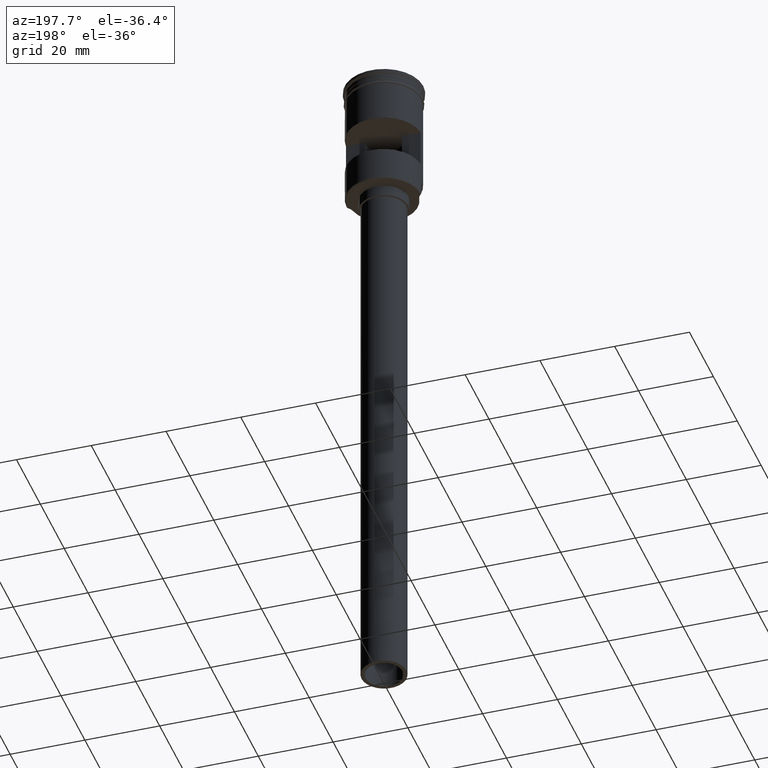
[diagram: clean part render]
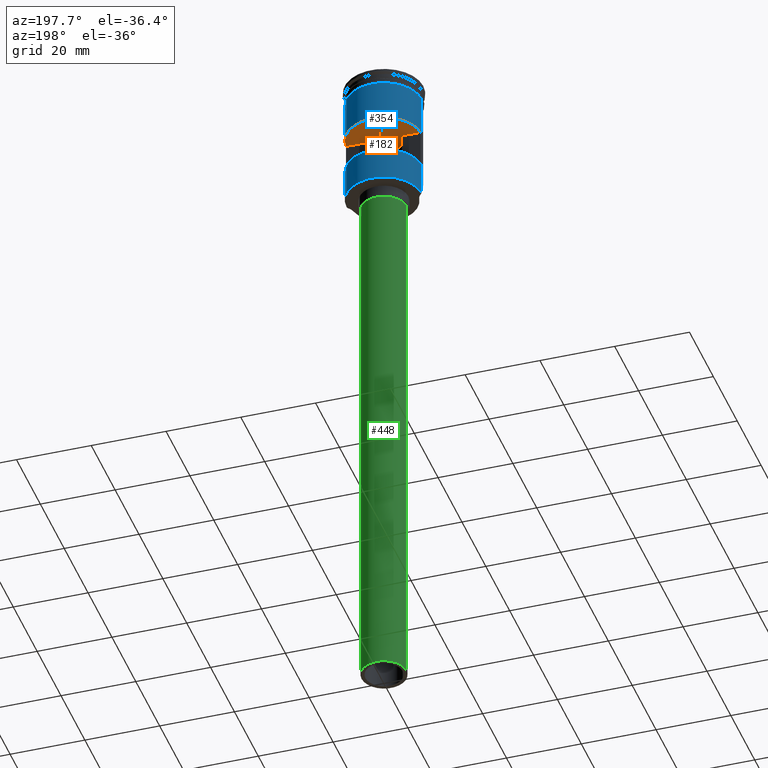
[diagram: same view with three faces highlighted in distinct colors, each labeled with its STEP entity id]
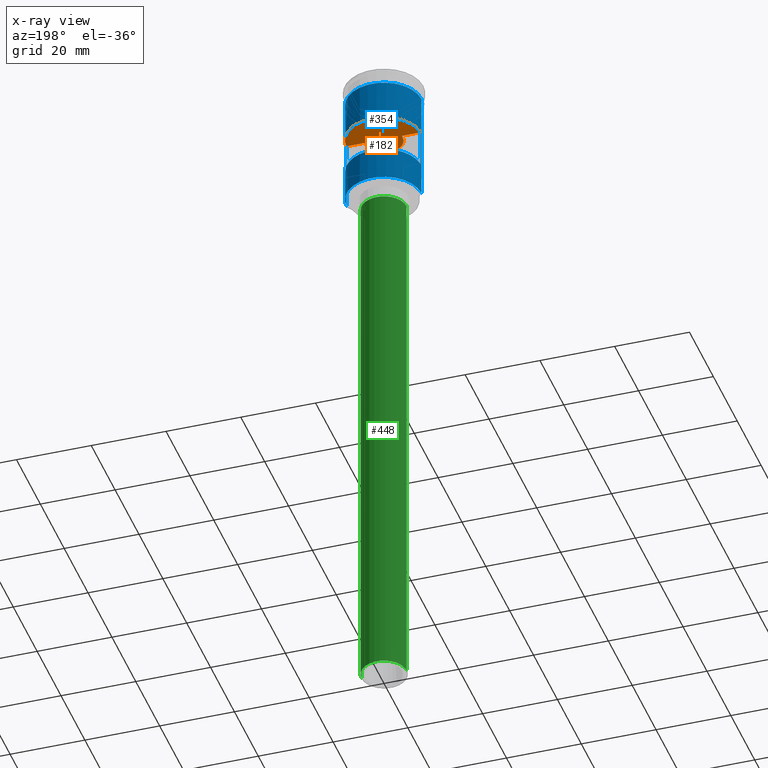
[diagram: x-ray of the same camera — body ghosted, the three highlighted faces saturated]
A machine part, auxiliary view with three faces highlighted in distinct colors.
The next image is the same camera in x-ray (body ghosted, the three faces saturated) — at least one of them is partly hidden behind the body in this view.
Their STEP definitions:

[orange] entity #182 — the highlighted planar face has unit normal (0, -0, 1).
#17 = DIRECTION ( 'NONE',  ( 0.000000000000000000, -1.845450506358306558E-16, 1.000000000000000000 ) ) ;
#23 = CARTESIAN_POINT ( 'NONE',  ( -5.000000000000000888, 0.000000000000000000, -15.00000000000000000 ) ) ;
#48 = EDGE_CURVE ( 'NONE', #834, #735, #1109, .T. ) ;
#59 = DIRECTION ( 'NONE',  ( 1.000000000000000000, -0.000000000000000000, -0.000000000000000000 ) ) ;
#77 = DIRECTION ( 'NONE',  ( 0.000000000000000000, -1.000000000000000000, -3.469446951953613696E-16 ) ) ;
#103 = CARTESIAN_POINT ( 'NONE',  ( 0.000000000000000000, 0.000000000000000000, -15.00000000000000000 ) ) ;
#118 = ORIENTED_EDGE ( 'NONE', *, *, #484, .T. ) ;
#130 = CARTESIAN_POINT ( 'NONE',  ( -10.50000000000000000, 0.6000000000000000888, -15.00000000000000000 ) ) ;
#182 = ADVANCED_FACE ( 'NONE', ( #781 ), #1134, .F. ) ;
#195 = VERTEX_POINT ( 'NONE', #551 ) ;
#210 = VERTEX_POINT ( 'NONE', #747 ) ;
#290 = ORIENTED_EDGE ( 'NONE', *, *, #48, .T. ) ;
#348 = DIRECTION ( 'NONE',  ( -0.000000000000000000, 1.845450506358306558E-16, -1.000000000000000000 ) ) ;
#367 = CARTESIAN_POINT ( 'NONE',  ( 0.000000000000000000, 0.000000000000000000, -15.00000000000000000 ) ) ;
#400 = EDGE_CURVE ( 'NONE', #1455, #210, #1437, .T. ) ;
#407 = LINE ( 'NONE', #130, #410 ) ;
#410 = VECTOR ( 'NONE', #1395, 1000.000000000000000 ) ;
#432 = AXIS2_PLACEMENT_3D ( 'NONE', #636, #1150, #77 ) ;
#460 = AXIS2_PLACEMENT_3D ( 'NONE', #771, #17, #518 ) ;
#484 = EDGE_CURVE ( 'NONE', #586, #834, #643, .T. ) ;
#513 = EDGE_CURVE ( 'NONE', #195, #586, #1058, .T. ) ;
#514 = AXIS2_PLACEMENT_3D ( 'NONE', #1289, #1185, #1050 ) ;
#518 = DIRECTION ( 'NONE',  ( 0.000000000000000000, -1.000000000000000000, -1.845450506358306558E-16 ) ) ;
#551 = CARTESIAN_POINT ( 'NONE',  ( 4.963869458396339418, 0.6000000000000000888, -15.00000000000000000 ) ) ;
#553 = LINE ( 'NONE', #1313, #1213 ) ;
#586 = VERTEX_POINT ( 'NONE', #1534 ) ;
#618 = DIRECTION ( 'NONE',  ( 0.000000000000000000, -1.000000000000000000, -1.734723475976808080E-16 ) ) ;
#636 = CARTESIAN_POINT ( 'NONE',  ( 0.000000000000000000, 0.000000000000000000, -15.00000000000000000 ) ) ;
#643 = CIRCLE ( 'NONE', #514, 5.000000000000000888 ) ;
#672 = ORIENTED_EDGE ( 'NONE', *, *, #1378, .F. ) ;
#735 = VERTEX_POINT ( 'NONE', #1325 ) ;
#747 = CARTESIAN_POINT ( 'NONE',  ( 9.981983770774210285, 0.6000000000000000888, -15.00000000000000000 ) ) ;
#771 = CARTESIAN_POINT ( 'NONE',  ( -10.50000000000000000, 0.6000000000000000888, -15.00000000000000000 ) ) ;
#781 = FACE_OUTER_BOUND ( 'NONE', #1277, .T. ) ;
#834 = VERTEX_POINT ( 'NONE', #23 ) ;
#977 = AXIS2_PLACEMENT_3D ( 'NONE', #103, #1574, #618 ) ;
#1050 = DIRECTION ( 'NONE',  ( 0.000000000000000000, -1.000000000000000000, -3.469446951953613696E-16 ) ) ;
#1058 = CIRCLE ( 'NONE', #1159, 5.000000000000000888 ) ;
#1109 = CIRCLE ( 'NONE', #432, 5.000000000000000888 ) ;
#1134 = PLANE ( 'NONE',  #460 ) ;
#1143 = ORIENTED_EDGE ( 'NONE', *, *, #513, .T. ) ;
#1150 = DIRECTION ( 'NONE',  ( -0.000000000000000000, 1.845450506358306558E-16, -1.000000000000000000 ) ) ;
#1159 = AXIS2_PLACEMENT_3D ( 'NONE', #367, #348, #1323 ) ;
#1185 = DIRECTION ( 'NONE',  ( -0.000000000000000000, 1.845450506358306558E-16, -1.000000000000000000 ) ) ;
#1213 = VECTOR ( 'NONE', #59, 1000.000000000000000 ) ;
#1229 = ORIENTED_EDGE ( 'NONE', *, *, #400, .T. ) ;
#1277 = EDGE_LOOP ( 'NONE', ( #1555, #1143, #118, #290, #672, #1229 ) ) ;
#1289 = CARTESIAN_POINT ( 'NONE',  ( 0.000000000000000000, 0.000000000000000000, -15.00000000000000000 ) ) ;
#1313 = CARTESIAN_POINT ( 'NONE',  ( -10.50000000000000000, 0.6000000000000000888, -15.00000000000000000 ) ) ;
#1323 = DIRECTION ( 'NONE',  ( 0.000000000000000000, -1.000000000000000000, -3.469446951953613696E-16 ) ) ;
#1325 = CARTESIAN_POINT ( 'NONE',  ( -4.963869458396343859, 0.5999999999999999778, -15.00000000000000000 ) ) ;
#1330 = EDGE_CURVE ( 'NONE', #195, #210, #407, .T. ) ;
#1378 = EDGE_CURVE ( 'NONE', #1455, #735, #553, .T. ) ;
#1395 = DIRECTION ( 'NONE',  ( 1.000000000000000000, -0.000000000000000000, -0.000000000000000000 ) ) ;
#1437 = CIRCLE ( 'NONE', #977, 9.999999999999994671 ) ;
#1455 = VERTEX_POINT ( 'NONE', #1533 ) ;
#1533 = CARTESIAN_POINT ( 'NONE',  ( -9.981983770774217390, 0.6000000000000000888, -15.00000000000000000 ) ) ;
#1534 = CARTESIAN_POINT ( 'NONE',  ( 5.000000000000000888, 6.123233995736766282E-16, -15.00000000000000000 ) ) ;
#1555 = ORIENTED_EDGE ( 'NONE', *, *, #1330, .F. ) ;
#1574 = DIRECTION ( 'NONE',  ( -0.000000000000000000, 1.845450506358306558E-16, -1.000000000000000000 ) ) ;

[blue] entity #354 — the highlighted cylindrical surface (partial cylindrical patch) has radius 10 mm, axis along (-0, -0, 1).
#12 = VECTOR ( 'NONE', #403, 1000.000000000000000 ) ;
#16 = CIRCLE ( 'NONE', #1568, 9.999999999999994671 ) ;
#20 = EDGE_CURVE ( 'NONE', #409, #978, #1589, .T. ) ;
#37 = EDGE_CURVE ( 'NONE', #219, #409, #1247, .T. ) ;
#40 = DIRECTION ( 'NONE',  ( -0.000000000000000000, -0.000000000000000000, 1.000000000000000000 ) ) ;
#74 = EDGE_LOOP ( 'NONE', ( #722, #868, #696, #245, #186, #505 ) ) ;
#103 = CARTESIAN_POINT ( 'NONE',  ( 0.000000000000000000, 0.000000000000000000, -15.00000000000000000 ) ) ;
#110 = ORIENTED_EDGE ( 'NONE', *, *, #521, .F. ) ;
#127 = VECTOR ( 'NONE', #399, 1000.000000000000000 ) ;
#149 = CARTESIAN_POINT ( 'NONE',  ( -9.999999999999991118, 0.000000000000000000, -29.29999999999997229 ) ) ;
#186 = ORIENTED_EDGE ( 'NONE', *, *, #249, .F. ) ;
#190 = VERTEX_POINT ( 'NONE', #149 ) ;
#210 = VERTEX_POINT ( 'NONE', #747 ) ;
#219 = VERTEX_POINT ( 'NONE', #741 ) ;
#220 = VECTOR ( 'NONE', #1347, 1000.000000000000000 ) ;
#228 = CARTESIAN_POINT ( 'NONE',  ( 0.000000000000000000, 0.000000000000000000, -25.00000000000000000 ) ) ;
#234 = ORIENTED_EDGE ( 'NONE', *, *, #400, .F. ) ;
#236 = CARTESIAN_POINT ( 'NONE',  ( 0.000000000000000000, 0.000000000000000000, -3.999999999999996447 ) ) ;
#245 = ORIENTED_EDGE ( 'NONE', *, *, #37, .F. ) ;
#249 = EDGE_CURVE ( 'NONE', #499, #219, #1124, .T. ) ;
#259 = CARTESIAN_POINT ( 'NONE',  ( 0.000000000000000000, 0.000000000000000000, 0.000000000000000000 ) ) ;
#354 = ADVANCED_FACE ( 'NONE', ( #1013, #916 ), #1373, .T. ) ;
#392 = LINE ( 'NONE', #631, #127 ) ;
#399 = DIRECTION ( 'NONE',  ( -0.000000000000000000, -0.000000000000000000, 1.000000000000000000 ) ) ;
#400 = EDGE_CURVE ( 'NONE', #1455, #210, #1437, .T. ) ;
#403 = DIRECTION ( 'NONE',  ( -0.000000000000000000, -0.000000000000000000, 1.000000000000000000 ) ) ;
#409 = VERTEX_POINT ( 'NONE', #1202 ) ;
#446 = VERTEX_POINT ( 'NONE', #971 ) ;
#459 = DIRECTION ( 'NONE',  ( -0.000000000000000000, -0.000000000000000000, 1.000000000000000000 ) ) ;
#499 = VERTEX_POINT ( 'NONE', #666 ) ;
#505 = ORIENTED_EDGE ( 'NONE', *, *, #851, .T. ) ;
#521 = EDGE_CURVE ( 'NONE', #210, #1393, #1333, .T. ) ;
#576 = CARTESIAN_POINT ( 'NONE',  ( -10.00000000000000000, 1.224646799147353256E-15, -3.999999999999996447 ) ) ;
#580 = LINE ( 'NONE', #1583, #1139 ) ;
#618 = DIRECTION ( 'NONE',  ( 0.000000000000000000, -1.000000000000000000, -1.734723475976808080E-16 ) ) ;
#631 = CARTESIAN_POINT ( 'NONE',  ( -9.981983770774217390, 0.5999999999999998668, 0.000000000000000000 ) ) ;
#652 = DIRECTION ( 'NONE',  ( 0.000000000000000000, 0.000000000000000000, 1.000000000000000000 ) ) ;
#653 = ORIENTED_EDGE ( 'NONE', *, *, #1261, .F. ) ;
#666 = CARTESIAN_POINT ( 'NONE',  ( 9.999999999999991118, 1.224646799147352270E-15, -33.79999999999998295 ) ) ;
#696 = ORIENTED_EDGE ( 'NONE', *, *, #20, .F. ) ;
#722 = ORIENTED_EDGE ( 'NONE', *, *, #1167, .T. ) ;
#725 = CARTESIAN_POINT ( 'NONE',  ( -9.999999999999991118, 0.000000000000000000, -33.99999999999999289 ) ) ;
#736 = DIRECTION ( 'NONE',  ( -1.000000000000000000, -8.881784197001250351E-16, 0.000000000000000000 ) ) ;
#741 = CARTESIAN_POINT ( 'NONE',  ( 9.999999999999994671, 1.224646799147352665E-15, -29.29999999999997229 ) ) ;
#742 = CARTESIAN_POINT ( 'NONE',  ( -9.981983770774217390, 0.5999999999999998668, -25.00000000000000000 ) ) ;
#747 = CARTESIAN_POINT ( 'NONE',  ( 9.981983770774210285, 0.6000000000000000888, -15.00000000000000000 ) ) ;
#833 = DIRECTION ( 'NONE',  ( -0.000000000000000000, -0.000000000000000000, 1.000000000000000000 ) ) ;
#849 = VECTOR ( 'NONE', #1338, 1000.000000000000000 ) ;
#851 = EDGE_CURVE ( 'NONE', #499, #446, #879, .T. ) ;
#865 = DIRECTION ( 'NONE',  ( 0.000000000000000000, 0.000000000000000000, 1.000000000000000000 ) ) ;
#868 = ORIENTED_EDGE ( 'NONE', *, *, #1584, .T. ) ;
#877 = CARTESIAN_POINT ( 'NONE',  ( 0.000000000000000000, 0.000000000000000000, -33.79999999999998295 ) ) ;
#879 = CIRCLE ( 'NONE', #1470, 9.999999999999994671 ) ;
#895 = AXIS2_PLACEMENT_3D ( 'NONE', #236, #1137, #1522 ) ;
#916 = FACE_OUTER_BOUND ( 'NONE', #74, .T. ) ;
#944 = EDGE_LOOP ( 'NONE', ( #110, #234, #653, #1192 ) ) ;
#971 = CARTESIAN_POINT ( 'NONE',  ( -9.999999999999991118, 0.000000000000000000, -33.79999999999998295 ) ) ;
#977 = AXIS2_PLACEMENT_3D ( 'NONE', #103, #1574, #618 ) ;
#978 = VERTEX_POINT ( 'NONE', #576 ) ;
#1011 = CARTESIAN_POINT ( 'NONE',  ( 9.981983770774217390, 0.5999999999999998668, 0.000000000000000000 ) ) ;
#1013 = FACE_BOUND ( 'NONE', #944, .T. ) ;
#1032 = CARTESIAN_POINT ( 'NONE',  ( 9.981983770774210285, 0.6000000000000000888, -25.00000000000000000 ) ) ;
#1124 = LINE ( 'NONE', #1232, #849 ) ;
#1137 = DIRECTION ( 'NONE',  ( -0.000000000000000000, -0.000000000000000000, 1.000000000000000000 ) ) ;
#1139 = VECTOR ( 'NONE', #833, 1000.000000000000000 ) ;
#1167 = EDGE_CURVE ( 'NONE', #446, #190, #1452, .T. ) ;
#1192 = ORIENTED_EDGE ( 'NONE', *, *, #1215, .F. ) ;
#1202 = CARTESIAN_POINT ( 'NONE',  ( 9.999999999999998224, 0.000000000000000000, -3.999999999999996447 ) ) ;
#1215 = EDGE_CURVE ( 'NONE', #1393, #1581, #16, .T. ) ;
#1232 = CARTESIAN_POINT ( 'NONE',  ( 9.999999999999991118, 1.224646799147352270E-15, -33.99999999999999289 ) ) ;
#1247 = LINE ( 'NONE', #1512, #12 ) ;
#1261 = EDGE_CURVE ( 'NONE', #1581, #1455, #392, .T. ) ;
#1314 = VECTOR ( 'NONE', #459, 1000.000000000000000 ) ;
#1333 = LINE ( 'NONE', #1011, #220 ) ;
#1338 = DIRECTION ( 'NONE',  ( -0.000000000000000000, -0.000000000000000000, 1.000000000000000000 ) ) ;
#1347 = DIRECTION ( 'NONE',  ( 0.000000000000000000, 0.000000000000000000, -1.000000000000000000 ) ) ;
#1366 = DIRECTION ( 'NONE',  ( -1.000000000000000000, 0.000000000000000000, 0.000000000000000000 ) ) ;
#1373 = CYLINDRICAL_SURFACE ( 'NONE', #1508, 9.999999999999994671 ) ;
#1391 = DIRECTION ( 'NONE',  ( 1.000000000000000000, 0.000000000000000000, 0.000000000000000000 ) ) ;
#1393 = VERTEX_POINT ( 'NONE', #1032 ) ;
#1437 = CIRCLE ( 'NONE', #977, 9.999999999999994671 ) ;
#1452 = LINE ( 'NONE', #725, #1314 ) ;
#1455 = VERTEX_POINT ( 'NONE', #1533 ) ;
#1470 = AXIS2_PLACEMENT_3D ( 'NONE', #877, #652, #1366 ) ;
#1508 = AXIS2_PLACEMENT_3D ( 'NONE', #259, #40, #1391 ) ;
#1512 = CARTESIAN_POINT ( 'NONE',  ( 9.999999999999994671, 0.000000000000000000, 0.000000000000000000 ) ) ;
#1522 = DIRECTION ( 'NONE',  ( 1.000000000000000000, 0.000000000000000000, 0.000000000000000000 ) ) ;
#1533 = CARTESIAN_POINT ( 'NONE',  ( -9.981983770774217390, 0.6000000000000000888, -15.00000000000000000 ) ) ;
#1568 = AXIS2_PLACEMENT_3D ( 'NONE', #228, #865, #736 ) ;
#1574 = DIRECTION ( 'NONE',  ( -0.000000000000000000, 1.845450506358306558E-16, -1.000000000000000000 ) ) ;
#1581 = VERTEX_POINT ( 'NONE', #742 ) ;
#1583 = CARTESIAN_POINT ( 'NONE',  ( -9.999999999999994671, 1.224646799147352665E-15, 0.000000000000000000 ) ) ;
#1584 = EDGE_CURVE ( 'NONE', #190, #978, #580, .T. ) ;
#1589 = CIRCLE ( 'NONE', #895, 9.999999999999998224 ) ;

[green] entity #448 — the highlighted cylindrical surface (edge-blend (fillet) strip) has radius 6 mm, axis along (-0, -0, 1).
#57 = ORIENTED_EDGE ( 'NONE', *, *, #353, .T. ) ;
#114 = EDGE_CURVE ( 'NONE', #745, #1578, #592, .T. ) ;
#141 = VECTOR ( 'NONE', #798, 1000.000000000000000 ) ;
#229 = FACE_OUTER_BOUND ( 'NONE', #1456, .T. ) ;
#331 = AXIS2_PLACEMENT_3D ( 'NONE', #955, #1356, #1352 ) ;
#337 = CARTESIAN_POINT ( 'NONE',  ( -6.000000000000000888, 7.347880794884120722E-16, -37.00000000000000000 ) ) ;
#347 = CARTESIAN_POINT ( 'NONE',  ( 0.000000000000000000, 0.000000000000000000, -184.0000000000000000 ) ) ;
#353 = EDGE_CURVE ( 'NONE', #745, #1178, #667, .T. ) ;
#394 = VERTEX_POINT ( 'NONE', #1045 ) ;
#424 = ORIENTED_EDGE ( 'NONE', *, *, #1175, .T. ) ;
#448 = ADVANCED_FACE ( 'NONE', ( #229 ), #1105, .T. ) ;
#450 = CARTESIAN_POINT ( 'NONE',  ( -6.000000000000000888, 7.347880794884120722E-16, -184.0000000000000000 ) ) ;
#454 = DIRECTION ( 'NONE',  ( -1.000000000000000000, 0.000000000000000000, 0.000000000000000000 ) ) ;
#592 = CIRCLE ( 'NONE', #668, 6.000000000000000888 ) ;
#622 = CIRCLE ( 'NONE', #331, 6.000000000000000888 ) ;
#667 = LINE ( 'NONE', #680, #141 ) ;
#668 = AXIS2_PLACEMENT_3D ( 'NONE', #915, #809, #454 ) ;
#680 = CARTESIAN_POINT ( 'NONE',  ( -6.000000000000000888, 7.347880794884120722E-16, -184.0000000000000000 ) ) ;
#712 = DIRECTION ( 'NONE',  ( -0.000000000000000000, -0.000000000000000000, 1.000000000000000000 ) ) ;
#745 = VERTEX_POINT ( 'NONE', #450 ) ;
#798 = DIRECTION ( 'NONE',  ( -0.000000000000000000, -0.000000000000000000, 1.000000000000000000 ) ) ;
#809 = DIRECTION ( 'NONE',  ( 0.000000000000000000, 0.000000000000000000, -1.000000000000000000 ) ) ;
#843 = DIRECTION ( 'NONE',  ( -0.000000000000000000, -0.000000000000000000, 1.000000000000000000 ) ) ;
#915 = CARTESIAN_POINT ( 'NONE',  ( 0.000000000000000000, 0.000000000000000000, -184.0000000000000000 ) ) ;
#955 = CARTESIAN_POINT ( 'NONE',  ( 0.000000000000000000, 0.000000000000000000, -37.00000000000000000 ) ) ;
#1026 = EDGE_CURVE ( 'NONE', #1578, #394, #1053, .T. ) ;
#1045 = CARTESIAN_POINT ( 'NONE',  ( 6.000000000000000888, 0.000000000000000000, -37.00000000000000000 ) ) ;
#1053 = LINE ( 'NONE', #1306, #1566 ) ;
#1083 = AXIS2_PLACEMENT_3D ( 'NONE', #347, #843, #1331 ) ;
#1105 = CYLINDRICAL_SURFACE ( 'NONE', #1083, 6.000000000000000888 ) ;
#1175 = EDGE_CURVE ( 'NONE', #1178, #394, #622, .T. ) ;
#1178 = VERTEX_POINT ( 'NONE', #337 ) ;
#1191 = CARTESIAN_POINT ( 'NONE',  ( 6.000000000000000888, 0.000000000000000000, -184.0000000000000000 ) ) ;
#1196 = ORIENTED_EDGE ( 'NONE', *, *, #1026, .F. ) ;
#1306 = CARTESIAN_POINT ( 'NONE',  ( 6.000000000000000888, 0.000000000000000000, -184.0000000000000000 ) ) ;
#1331 = DIRECTION ( 'NONE',  ( 1.000000000000000000, 0.000000000000000000, 0.000000000000000000 ) ) ;
#1352 = DIRECTION ( 'NONE',  ( -1.000000000000000000, 0.000000000000000000, 0.000000000000000000 ) ) ;
#1356 = DIRECTION ( 'NONE',  ( 0.000000000000000000, 0.000000000000000000, -1.000000000000000000 ) ) ;
#1456 = EDGE_LOOP ( 'NONE', ( #1486, #57, #424, #1196 ) ) ;
#1486 = ORIENTED_EDGE ( 'NONE', *, *, #114, .F. ) ;
#1566 = VECTOR ( 'NONE', #712, 1000.000000000000000 ) ;
#1578 = VERTEX_POINT ( 'NONE', #1191 ) ;